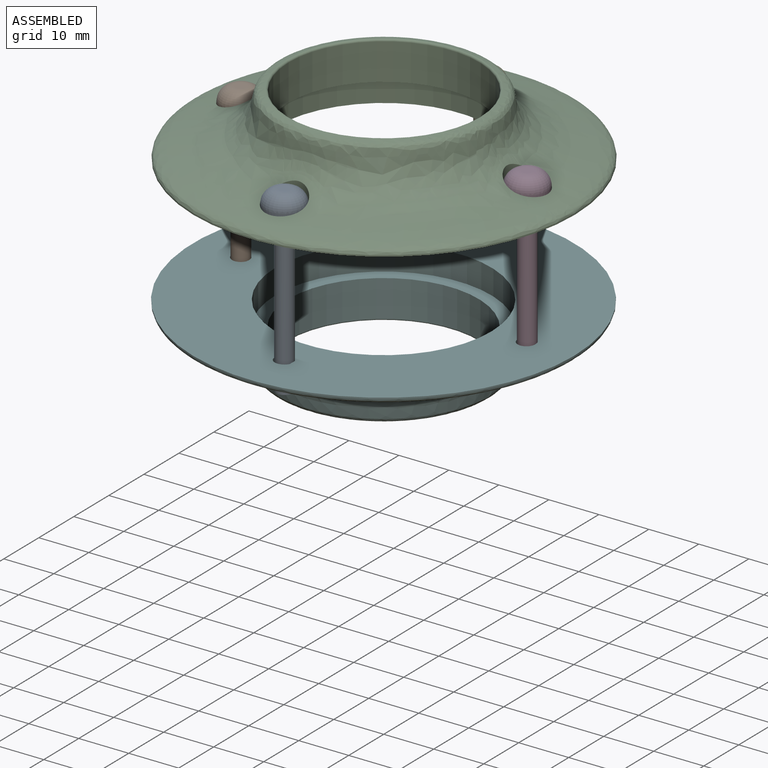
[diagram: assembled view]
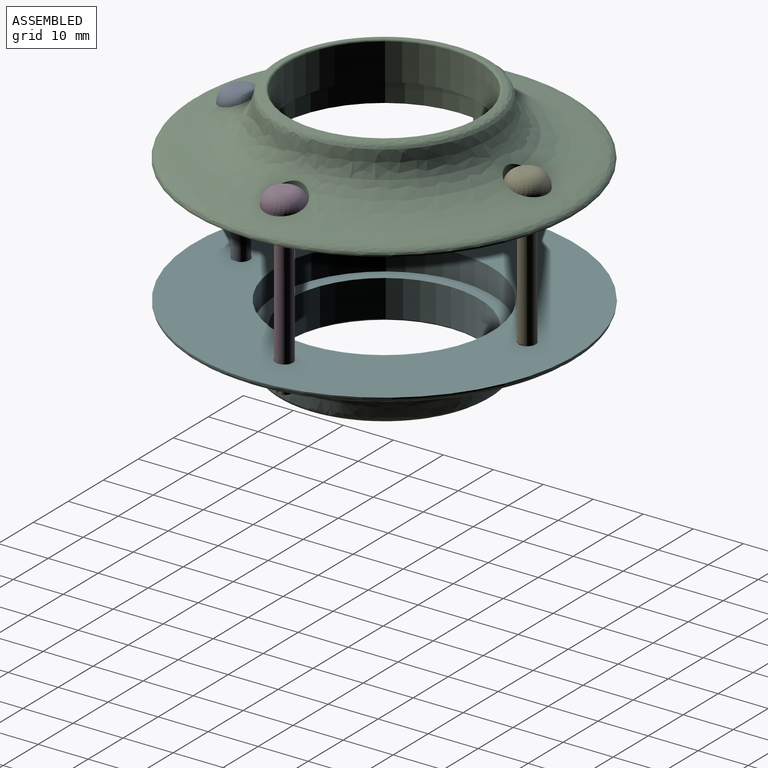
[diagram: assembled view, second angle]
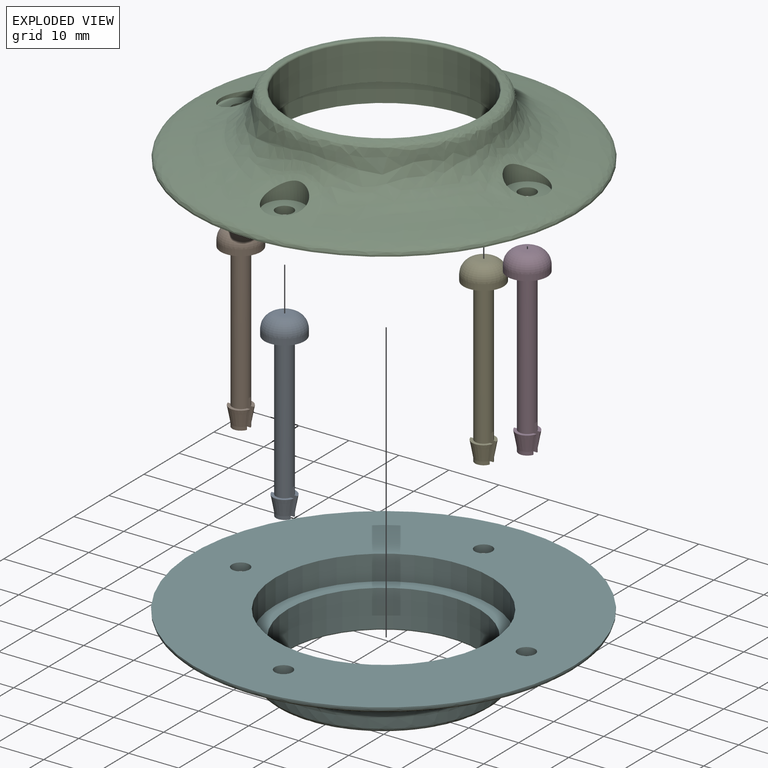
[diagram: exploded view]
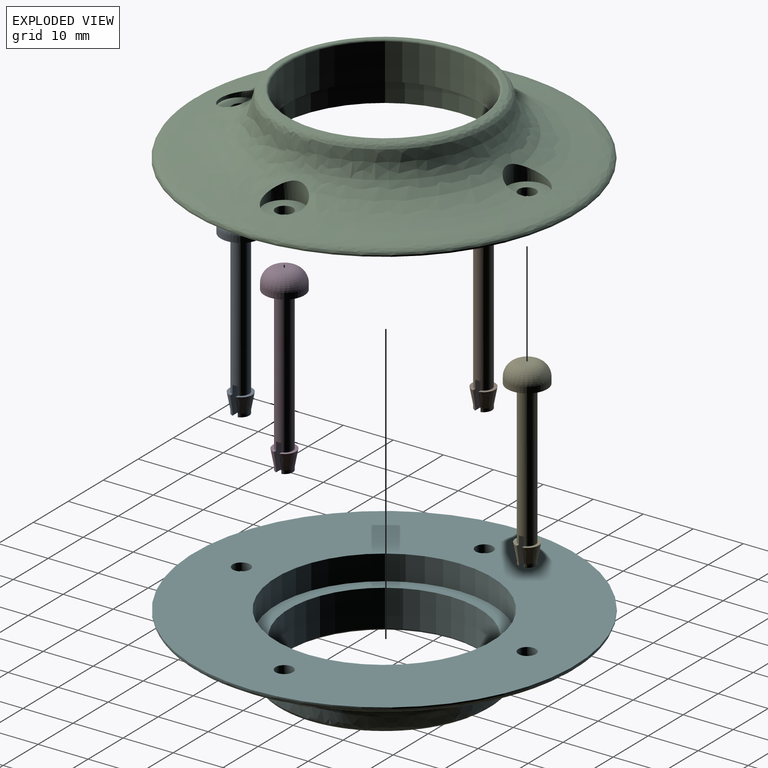
[diagram: exploded view, second angle]
ASSEMBLY  parts=6 mates=5
PART A: 16 faces, bbox 8x8x36.6 mm
  f0: cone r=1.57mm half-angle=10.7deg, axis (0,0,-1), area 17.2mm2, adj f1,f3,f14
  f1: plane 4.5x1.78mm, normal (0,0,-1), area 3.2mm2, adj f0,f4,f14
  f2: plane 3.23x1.17mm, normal (0,0,1), area 2.8mm2, adj f3,f14
  f3: cylinder r=1.7mm len=3.23mm, axis (0,0,-1), area 2.8mm2, adj f0,f2,f14
  f4: cylinder r=1.7mm len=28.7mm, axis (0,0,-1), area 302.9mm2, adj f1,f6,f10,f13,f14,f15
  f5: cylinder r=4mm len=8mm, axis (0,0,-1), area 30.1mm2, adj f6,f8
  f6: plane 8x8mm, normal (0,0,1), area 41.2mm2, adj f4,f5
  f7: plane 2.4x2.4mm, normal (0,0,-1), area 4.5mm2, adj f8
  f8: torus R=1.2mm, axis (0,0,1), area 82.4mm2, adj f5,f7
  f9: cone r=1.57mm half-angle=10.7deg, axis (0,0,-1), area 17.2mm2, adj f10,f12,f15
  f10: plane 4.5x1.78mm, normal (0,0,-1), area 3.2mm2, adj f4,f9,f15
  f11: plane 3.23x1.17mm, normal (0,0,1), area 2.8mm2, adj f12,f15
  f12: cylinder r=1.7mm len=3.23mm, axis (0,0,-1), area 2.8mm2, adj f9,f11,f15
  f13: plane 3.4x1.06mm, normal (0,0,1), area 3.5mm2, adj f4,f14,f15
  f14: plane 5.63x4.53mm, normal (0,1,0), area 20.2mm2, adj f0,f1,f2,f3,f4,f13
  f15: plane 5.63x4.53mm, normal (0,-1,0), area 20.2mm2, adj f4,f9,f10,f11,f12,f13
PART B: same geometry as A
PART C: 19 faces, bbox 76.3x152.6x12.7 mm
  f0: plane 76.2x76.2mm, normal (0,0,-1), area 3057.5mm2, adj f1,f13,f14,f15,f16,f17
  f1: cylinder r=38.1mm len=76.2mm, axis (0,0,-1), area 69.9mm2, adj f0,f3
  f2: cylinder r=19.05mm len=38.1mm, axis (0,0,-1), area 874mm2, adj f4,f18
  f3: bspline ~152.58x76.29mm, area 4016.3mm2, adj f1,f4,f5,f7,f9,f11
  f4: torus R=19.44mm, axis (0,0,-1), area 76.3mm2, adj f2,f3
  f5: cylinder r=4.04mm len=8.08mm, axis (0,0,1), area 47.9mm2, adj f3,f6
  f6: plane 8.08x8.08mm, normal (0,0,1), area 41.7mm2, adj f5,f16
  f7: cylinder r=4.04mm len=8.08mm, axis (0,0,1), area 48mm2, adj f3,f8
  f8: plane 8.08x8.08mm, normal (0,0,1), area 41.7mm2, adj f7,f15
  f9: cylinder r=4.04mm len=8.08mm, axis (0,0,1), area 48mm2, adj f3,f10
  f10: plane 8.08x8.08mm, normal (0,0,1), area 41.7mm2, adj f9,f14
  f11: cylinder r=4.04mm len=8.08mm, axis (0,0,1), area 48mm2, adj f3,f12
  f12: plane 8.08x8.08mm, normal (0,0,1), area 41.7mm2, adj f11,f13
  f13: cylinder r=1.75mm len=3.5mm, axis (0,0,1), area 17.6mm2, adj f0,f12
  f14: cylinder r=1.75mm len=3.5mm, axis (0,0,1), area 17.6mm2, adj f0,f10
  f15: cylinder r=1.75mm len=3.5mm, axis (0,0,1), area 17.6mm2, adj f0,f8
  f16: cylinder r=1.75mm len=3.5mm, axis (0,0,1), area 17.6mm2, adj f0,f6
  f17: cylinder r=21.59mm len=43.18mm, axis (0,0,-1), area 678.3mm2, adj f0,f18
  f18: plane 43.18x43.18mm, normal (0,0,-1), area 324.3mm2, adj f2,f17
PART D: same geometry as A
PART E: same geometry as A
PART F: same geometry as C
PLACE A rot(axis=(-1,0,0),180deg) t=(-9.8,-44.34,48.72)mm
PLACE B rot(axis=(-1,0,0),180deg) t=(-38.48,-15.86,48.72)mm
PLACE C rot(axis=(0,0,1),0.2deg) t=(70.1,-15.48,43.12)mm
PLACE D rot(axis=(-1,0,0),180deg) t=(18.67,-15.66,48.72)mm
PLACE E rot(axis=(1,0,0),180deg) t=(-10,12.81,48.72)mm
PLACE F rot(axis=(1,0,0),180deg) t=(70,-15.76,17.62)mm
MATE revolute C.f11 <-> B.f0  axis (0,0,1) through (-38.48,-15.86,44.72)mm
MATE revolute E.f3 <-> F.f9  axis (0,0,1) through (-10,12.81,16.02)mm
MATE revolute C.f9 <-> A.f0  axis (0,0,1) through (-9.8,-44.34,44.72)mm
MATE revolute E.f0 <-> C.f5  axis (0,0,-1) through (-10,12.81,44.72)mm
MATE revolute C.f7 <-> D.f0  axis (0,0,1) through (18.67,-15.66,44.72)mm
